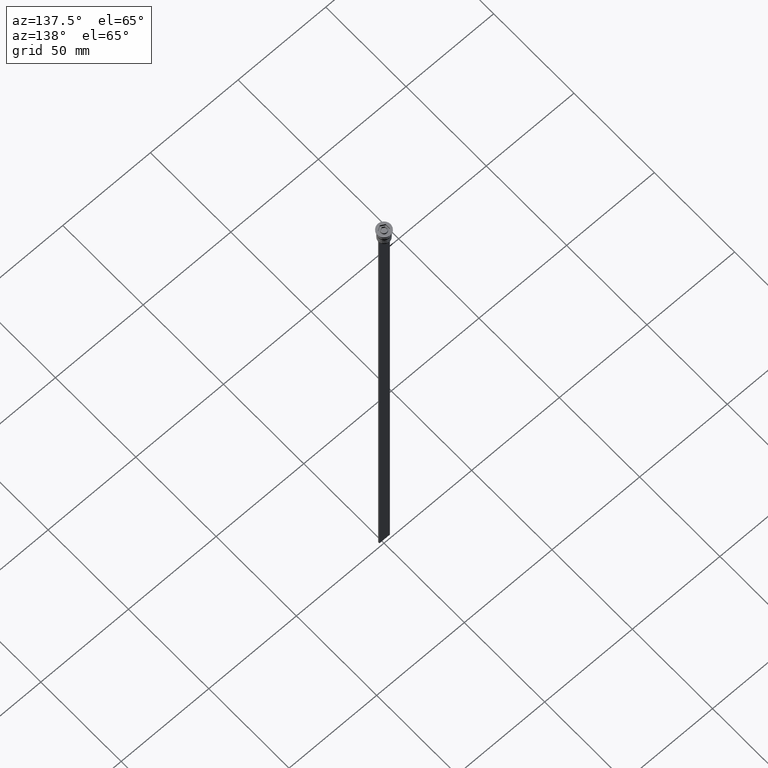
[diagram: clean part render]
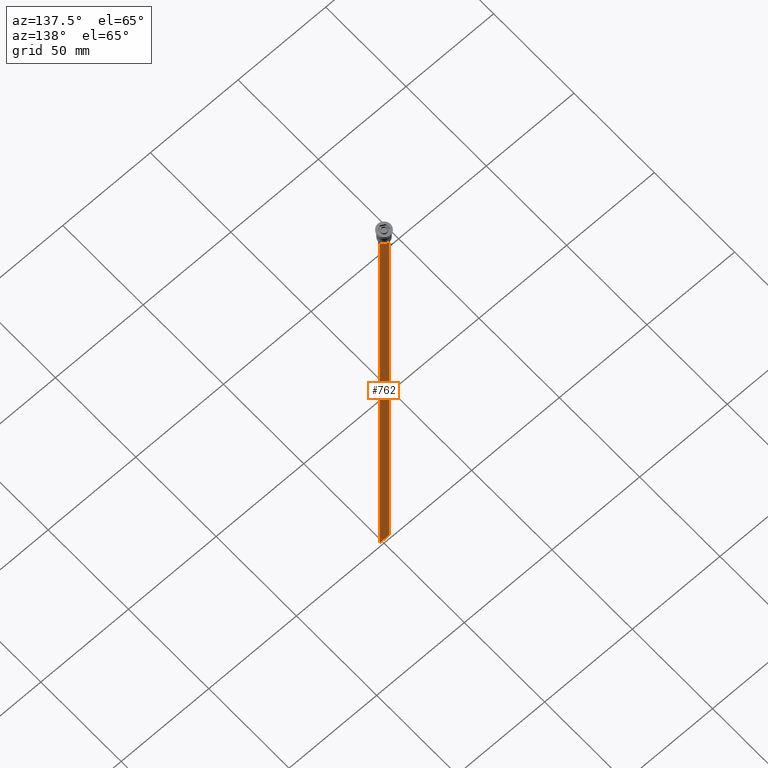
[diagram: same view with one face highlighted and labeled with its STEP entity id]
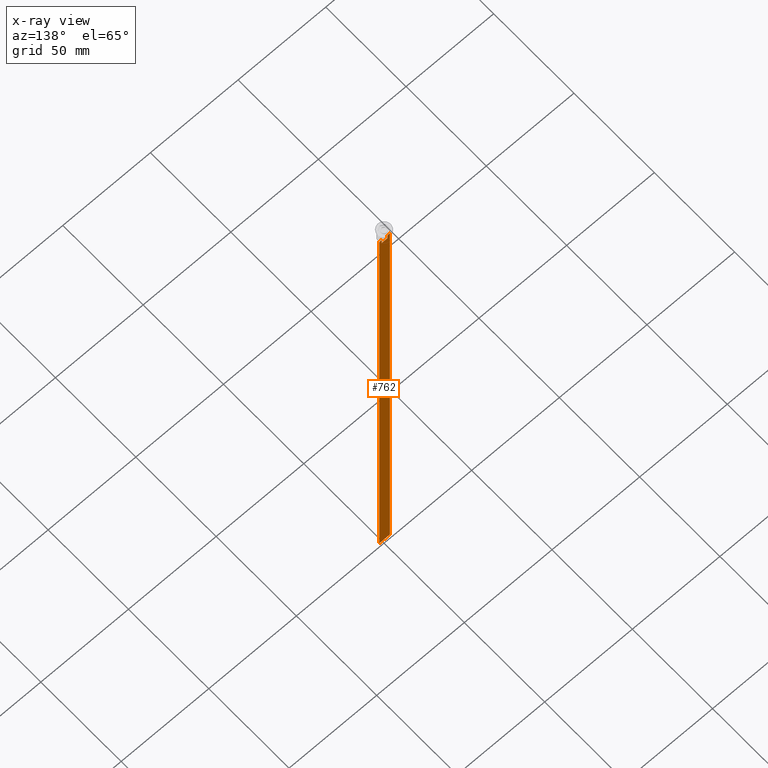
[diagram: x-ray of the same camera — body ghosted, the highlighted face saturated]
A machine part, auxiliary view. The second image highlights one B-rep face of the part: STEP entity #762.
The next image is the same camera in x-ray: the body ghosted, the highlighted face saturated — about 0% of this face is hidden behind the body in this view.
In plain terms, the highlighted planar face has unit normal (0, -1, -0).
Its self-contained STEP definition (entity closure, byte-faithful):
#14 = CARTESIAN_POINT ( 'NONE',  ( -1.612451549659713601, 0.3500000000000000333, 0.000000000000000000 ) ) ;
#37 = CARTESIAN_POINT ( 'NONE',  ( 2.999999999999995559, 0.3500000000000000333, -307.5000000000000000 ) ) ;
#38 = EDGE_CURVE ( 'NONE', #1488, #110, #1912, .T. ) ;
#58 = VECTOR ( 'NONE', #727, 1000.000000000000000 ) ;
#78 = LINE ( 'NONE', #560, #161 ) ;
#101 = FACE_OUTER_BOUND ( 'NONE', #1006, .T. ) ;
#110 = VERTEX_POINT ( 'NONE', #2110 ) ;
#117 = DIRECTION ( 'NONE',  ( -1.000000000000000000, 0.000000000000000000, 0.000000000000000000 ) ) ;
#136 = ORIENTED_EDGE ( 'NONE', *, *, #1690, .F. ) ;
#161 = VECTOR ( 'NONE', #1750, 1000.000000000000000 ) ;
#172 = LINE ( 'NONE', #335, #1134 ) ;
#182 = DIRECTION ( 'NONE',  ( 0.000000000000000000, -1.000000000000000000, -0.000000000000000000 ) ) ;
#187 = B_SPLINE_CURVE_WITH_KNOTS ( 'NONE', 3,
 ( #1215, #1055, #1398, #806 ),
 .UNSPECIFIED., .F., .F.,
 ( 4, 4 ),
 ( 0.003684653461239336628, 0.004398058763641255961 ),
 .UNSPECIFIED. ) ;
#213 = VERTEX_POINT ( 'NONE', #1955 ) ;
#252 = EDGE_CURVE ( 'NONE', #880, #575, #1295, .T. ) ;
#268 = CARTESIAN_POINT ( 'NONE',  ( 2.999999999999995559, 0.3500000000000000333, -1.459304675784417915 ) ) ;
#288 = CARTESIAN_POINT ( 'NONE',  ( 2.999999999999995559, 0.3500000000000000333, -7.500000000000000000 ) ) ;
#294 = AXIS2_PLACEMENT_3D ( 'NONE', #268, #182, #1337 ) ;
#315 = ORIENTED_EDGE ( 'NONE', *, *, #252, .T. ) ;
#321 = CARTESIAN_POINT ( 'NONE',  ( 1.612451549659713601, 0.3500000000000000333, -8.000000000000000000 ) ) ;
#335 = CARTESIAN_POINT ( 'NONE',  ( 1.612451549659713601, 0.3500000000000000333, 0.000000000000000000 ) ) ;
#370 = VERTEX_POINT ( 'NONE', #395 ) ;
#390 = DIRECTION ( 'NONE',  ( 1.000000000000000000, 0.000000000000000000, 0.000000000000000000 ) ) ;
#395 = CARTESIAN_POINT ( 'NONE',  ( -1.612451549659713601, 0.3500000000000000333, -10.49999999999999822 ) ) ;
#409 = CARTESIAN_POINT ( 'NONE',  ( -2.121320343559647270, 0.3500000000000000333, -7.500000000000000000 ) ) ;
#472 = VERTEX_POINT ( 'NONE', #1253 ) ;
#475 = DIRECTION ( 'NONE',  ( -0.000000000000000000, -0.000000000000000000, 1.000000000000000000 ) ) ;
#518 = ORIENTED_EDGE ( 'NONE', *, *, #987, .T. ) ;
#560 = CARTESIAN_POINT ( 'NONE',  ( 2.999999999999995559, 0.3500000000000000333, -1.459304675784417915 ) ) ;
#568 = VECTOR ( 'NONE', #1891, 1000.000000000000000 ) ;
#575 = VERTEX_POINT ( 'NONE', #650 ) ;
#590 = EDGE_CURVE ( 'NONE', #1350, #370, #606, .T. ) ;
#602 = VECTOR ( 'NONE', #833, 1000.000000000000000 ) ;
#606 = LINE ( 'NONE', #14, #958 ) ;
#650 = CARTESIAN_POINT ( 'NONE',  ( -3.000000000000004441, 0.3500000000000000333, -307.5000000000000000 ) ) ;
#727 = DIRECTION ( 'NONE',  ( 1.000000000000000000, 0.000000000000000000, 0.000000000000000000 ) ) ;
#746 = EDGE_CURVE ( 'NONE', #882, #1350, #187, .T. ) ;
#762 = ADVANCED_FACE ( 'NONE', ( #101 ), #1266, .F. ) ;
#806 = CARTESIAN_POINT ( 'NONE',  ( -1.612451549659713601, 0.3500000000000000333, -8.000000000000000000 ) ) ;
#812 = VERTEX_POINT ( 'NONE', #1678 ) ;
#833 = DIRECTION ( 'NONE',  ( 1.000000000000000000, 0.000000000000000000, 0.000000000000000000 ) ) ;
#834 = EDGE_CURVE ( 'NONE', #213, #880, #78, .T. ) ;
#880 = VERTEX_POINT ( 'NONE', #37 ) ;
#882 = VERTEX_POINT ( 'NONE', #409 ) ;
#940 = LINE ( 'NONE', #1576, #58 ) ;
#958 = VECTOR ( 'NONE', #1377, 1000.000000000000000 ) ;
#974 = ORIENTED_EDGE ( 'NONE', *, *, #2032, .T. ) ;
#987 = EDGE_CURVE ( 'NONE', #812, #882, #940, .T. ) ;
#993 = VECTOR ( 'NONE', #390, 1000.000000000000000 ) ;
#1006 = EDGE_LOOP ( 'NONE', ( #518, #1705, #1916, #1538, #974, #1127, #1964, #1368, #315, #136 ) ) ;
#1055 = CARTESIAN_POINT ( 'NONE',  ( -1.952043732028445167, 0.3500000000000000333, -7.667018567316270961 ) ) ;
#1073 = LINE ( 'NONE', #1367, #993 ) ;
#1074 = EDGE_CURVE ( 'NONE', #110, #213, #1461, .T. ) ;
#1127 = ORIENTED_EDGE ( 'NONE', *, *, #38, .T. ) ;
#1134 = VECTOR ( 'NONE', #475, 1000.000000000000000 ) ;
#1186 = CARTESIAN_POINT ( 'NONE',  ( -3.000000000000004441, 0.3500000000000000333, -1.459304675784417915 ) ) ;
#1215 = CARTESIAN_POINT ( 'NONE',  ( -2.121320343559647270, 0.3500000000000000333, -7.500000000000000000 ) ) ;
#1228 = LINE ( 'NONE', #1186, #568 ) ;
#1253 = CARTESIAN_POINT ( 'NONE',  ( 1.612451549659713601, 0.3500000000000000333, -10.49999999999999822 ) ) ;
#1260 = EDGE_CURVE ( 'NONE', #370, #472, #1073, .T. ) ;
#1266 = PLANE ( 'NONE',  #294 ) ;
#1295 = LINE ( 'NONE', #1948, #1930 ) ;
#1337 = DIRECTION ( 'NONE',  ( 0.000000000000000000, 0.000000000000000000, -1.000000000000000000 ) ) ;
#1350 = VERTEX_POINT ( 'NONE', #2061 ) ;
#1367 = CARTESIAN_POINT ( 'NONE',  ( 0.000000000000000000, 0.3500000000000000333, -10.49999999999999822 ) ) ;
#1368 = ORIENTED_EDGE ( 'NONE', *, *, #834, .T. ) ;
#1377 = DIRECTION ( 'NONE',  ( 0.000000000000000000, 0.000000000000000000, -1.000000000000000000 ) ) ;
#1387 = CARTESIAN_POINT ( 'NONE',  ( 1.612451549659713601, 0.3500000000000000333, -8.000000000000000000 ) ) ;
#1398 = CARTESIAN_POINT ( 'NONE',  ( -1.782527878033863589, 0.3500000000000000333, -7.833794036819862860 ) ) ;
#1461 = LINE ( 'NONE', #288, #602 ) ;
#1488 = VERTEX_POINT ( 'NONE', #321 ) ;
#1529 = CARTESIAN_POINT ( 'NONE',  ( 1.952040775369266346, 0.3500000000000000333, -7.667021484535463394 ) ) ;
#1538 = ORIENTED_EDGE ( 'NONE', *, *, #1260, .T. ) ;
#1576 = CARTESIAN_POINT ( 'NONE',  ( 2.999999999999995559, 0.3500000000000000333, -7.500000000000000000 ) ) ;
#1678 = CARTESIAN_POINT ( 'NONE',  ( -3.000000000000004441, 0.3499999999999999223, -7.500000000000000000 ) ) ;
#1690 = EDGE_CURVE ( 'NONE', #812, #575, #1228, .T. ) ;
#1705 = ORIENTED_EDGE ( 'NONE', *, *, #746, .T. ) ;
#1750 = DIRECTION ( 'NONE',  ( 0.000000000000000000, 0.000000000000000000, -1.000000000000000000 ) ) ;
#1767 = CARTESIAN_POINT ( 'NONE',  ( 2.121320343559647270, 0.3500000000000000333, -7.500000000000000000 ) ) ;
#1891 = DIRECTION ( 'NONE',  ( 0.000000000000000000, 0.000000000000000000, -1.000000000000000000 ) ) ;
#1912 = B_SPLINE_CURVE_WITH_KNOTS ( 'NONE', 3,
 ( #1387, #2071, #1529, #1767 ),
 .UNSPECIFIED., .F., .F.,
 ( 4, 4 ),
 ( 0.008600796474521226961, 0.009317962624906524910 ),
 .UNSPECIFIED. ) ;
#1916 = ORIENTED_EDGE ( 'NONE', *, *, #590, .T. ) ;
#1930 = VECTOR ( 'NONE', #117, 1000.000000000000000 ) ;
#1948 = CARTESIAN_POINT ( 'NONE',  ( 2.999999999999995559, 0.3500000000000000333, -307.5000000000000000 ) ) ;
#1955 = CARTESIAN_POINT ( 'NONE',  ( 2.999999999999995559, 0.3500000000000000333, -7.500000000000000000 ) ) ;
#1964 = ORIENTED_EDGE ( 'NONE', *, *, #1074, .T. ) ;
#2032 = EDGE_CURVE ( 'NONE', #472, #1488, #172, .T. ) ;
#2061 = CARTESIAN_POINT ( 'NONE',  ( -1.612451549659713601, 0.3500000000000000333, -8.000000000000000000 ) ) ;
#2071 = CARTESIAN_POINT ( 'NONE',  ( 1.782523989086206795, 0.3500000000000000333, -7.833797837268088315 ) ) ;
#2110 = CARTESIAN_POINT ( 'NONE',  ( 2.121320343559647270, 0.3500000000000000333, -7.500000000000000000 ) ) ;